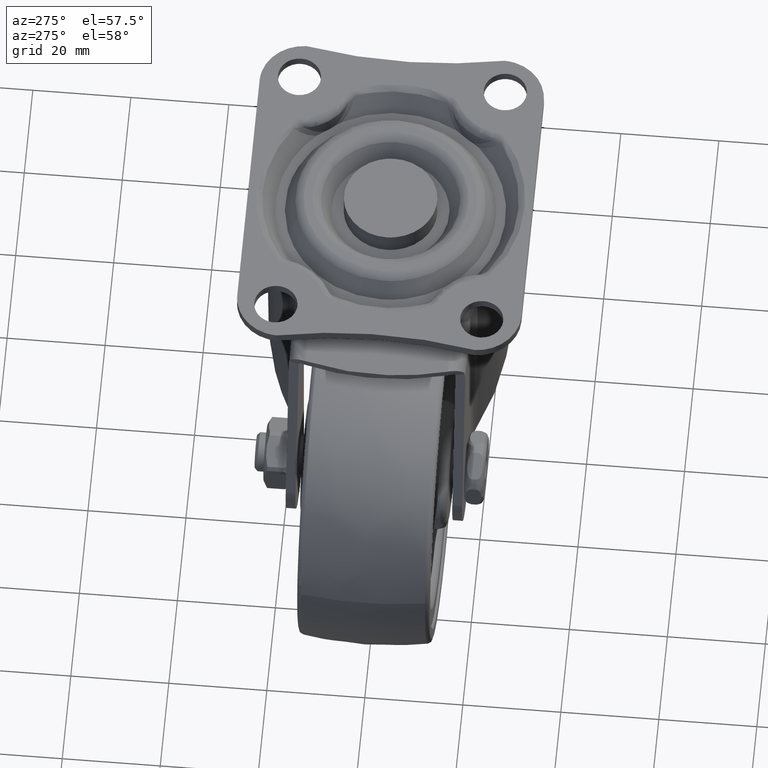
[diagram: clean part render]
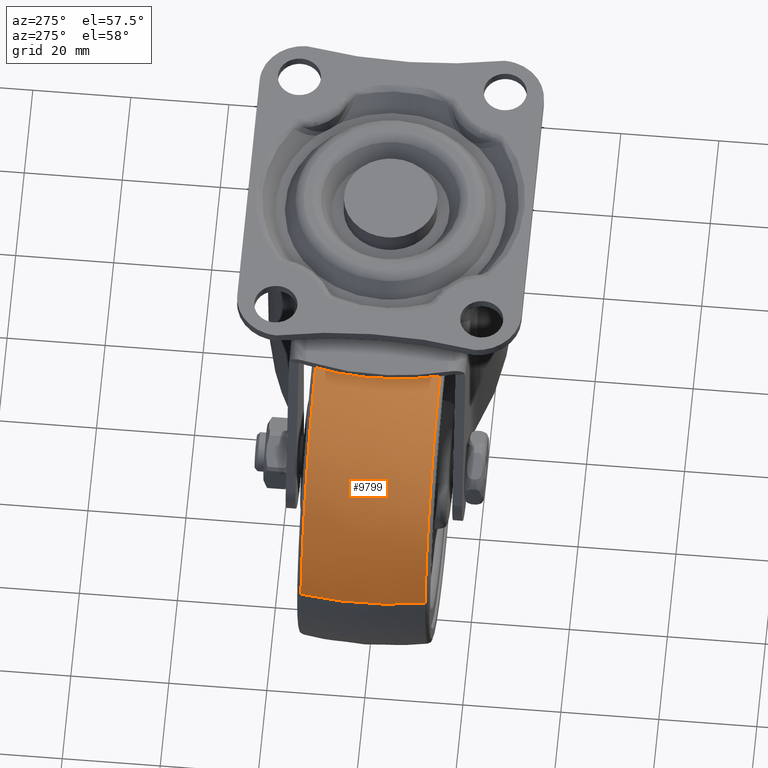
[diagram: same view with one face highlighted and labeled with its STEP entity id]
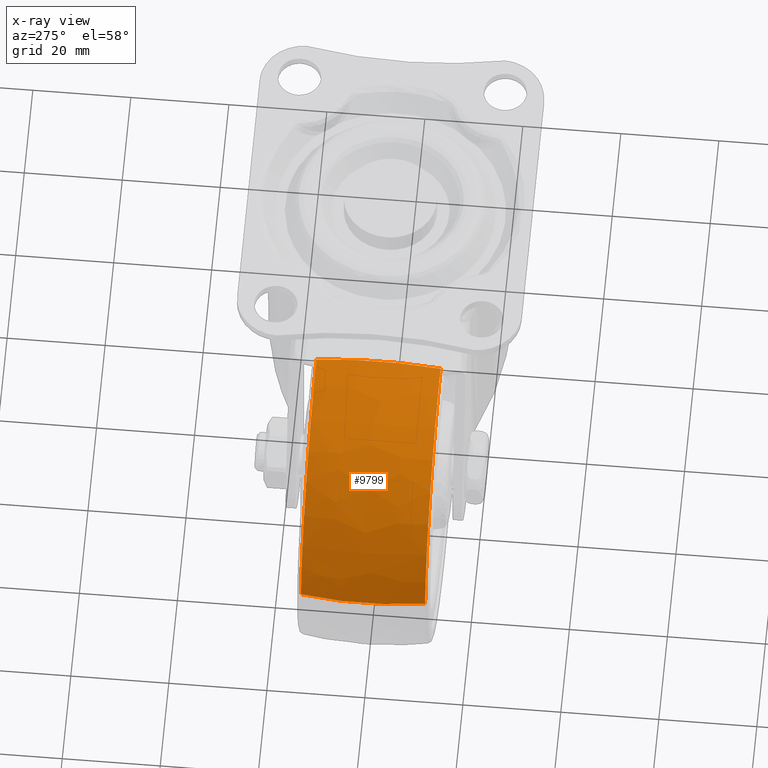
[diagram: x-ray of the same camera — body ghosted, the highlighted face saturated]
A machine part, auxiliary view. The second image highlights one B-rep face of the part: STEP entity #9799.
The next image is the same camera in x-ray: the body ghosted, the highlighted face saturated — about 0% of this face is hidden behind the body in this view.
In plain terms, the highlighted face is a freeform B-spline surface patch.
Its self-contained STEP definition (entity closure, byte-faithful):
#8533=CARTESIAN_POINT('',(-28.0,-12.668916959643511,-19.077759395410940));
#8534=VERTEX_POINT('',#8533);
#8548=CARTESIAN_POINT('',(-64.178642009598192,-12.668925112644191,-51.294556168802032));
#8549=VERTEX_POINT('',#8548);
#8550=CARTESIAN_POINT('',(-28.0,-12.668916959643511,-19.077759395410940));
#8551=CARTESIAN_POINT('',(-60.433722520481417,-12.668921036143848,-19.077759624584910));
#8552=CARTESIAN_POINT('',(-64.178642009598192,-12.668925112644191,-51.294556168802039));
#8560=(BOUNDED_CURVE()B_SPLINE_CURVE(2,(#8550,#8551,#8552),.UNSPECIFIED.,.F.,.U.)B_SPLINE_CURVE_WITH_KNOTS((3,3),(0.500000000000000,0.730000077810686),.UNSPECIFIED.)CURVE()GEOMETRIC_REPRESENTATION_ITEM()RATIONAL_B_SPLINE_CURVE((1.0,0.730538147530734,0.956886271341010))REPRESENTATION_ITEM(''));
#8561=EDGE_CURVE('',#8534,#8549,#8560,.T.);
#8628=CARTESIAN_POINT('',(-28.0,12.668902696078179,-19.077756950900710));
#8629=VERTEX_POINT('',#8628);
#8692=CARTESIAN_POINT('',(-63.777115558530099,12.668908927967831,-48.675187562578493));
#8693=VERTEX_POINT('',#8692);
#8707=CARTESIAN_POINT('',(-28.0,12.668902696078179,-19.077756950900710));
#8708=CARTESIAN_POINT('',(-58.131129300727835,12.668905697010883,-19.077758139331795));
#8709=CARTESIAN_POINT('',(-63.777115558530099,12.668908927967832,-48.675187562578486));
#8717=(BOUNDED_CURVE()B_SPLINE_CURVE(2,(#8707,#8708,#8709),.UNSPECIFIED.,.F.,.U.)B_SPLINE_CURVE_WITH_KNOTS((3,3),(0.500000000000000,0.717838773515279),.UNSPECIFIED.)CURVE()GEOMETRIC_REPRESENTATION_ITEM()RATIONAL_B_SPLINE_CURVE((1.0,0.744786001770941,0.934336038407073))REPRESENTATION_ITEM(''));
#8718=EDGE_CURVE('',#8629,#8693,#8717,.T.);
#8761=CARTESIAN_POINT('',(-64.178644444492932,12.668910670436951,-51.294555679297382));
#8762=VERTEX_POINT('',#8761);
#8778=CARTESIAN_POINT('',(-63.777115558530099,12.668908927967832,-48.675187562578486));
#8779=CARTESIAN_POINT('',(-64.025555746200112,12.668909804263272,-49.977563295008856));
#8780=CARTESIAN_POINT('',(-64.178644444492932,12.668910670436953,-51.294555679297382));
#8788=(BOUNDED_CURVE()B_SPLINE_CURVE(2,(#8778,#8779,#8780),.UNSPECIFIED.,.F.,.U.)B_SPLINE_CURVE_WITH_KNOTS((3,3),(0.717838773515279,0.730000076858197),.UNSPECIFIED.)CURVE()GEOMETRIC_REPRESENTATION_ITEM()RATIONAL_B_SPLINE_CURVE((0.934336038407073,0.944918064081357,0.956886269466280))REPRESENTATION_ITEM(''));
#8789=EDGE_CURVE('',#8693,#8762,#8788,.T.);
#9730=CARTESIAN_POINT('',(-64.178642009598192,-12.668925112644185,-51.294556168802032));
#9731=CARTESIAN_POINT('',(-65.249188383052910,-6.380305253426590,-51.170113991700532));
#9732=CARTESIAN_POINT('',(-65.249188377089979,1.205452E-013,-51.170113940403006));
#9733=CARTESIAN_POINT('',(-65.249188371127076,6.380297874021402,-51.170113889105536));
#9734=CARTESIAN_POINT('',(-64.178644444492932,12.668910670436954,-51.294555679297389));
#9742=(BOUNDED_CURVE()B_SPLINE_CURVE(2,(#9730,#9731,#9732,#9733,#9734),.UNSPECIFIED.,.F.,.U.)B_SPLINE_CURVE_WITH_KNOTS((3,2,3),(0.416825202455626,0.500000000000000,0.583174703489082),.UNSPECIFIED.)CURVE()GEOMETRIC_REPRESENTATION_ITEM()RATIONAL_B_SPLINE_CURVE((0.921329666042322,0.935560361051417,0.956886118190660,0.935560385166898,0.921329698226892))REPRESENTATION_ITEM(''));
#9743=EDGE_CURVE('',#8549,#8762,#9742,.T.);
#9748=CARTESIAN_POINT('',(-27.999999999999989,-12.668916959643525,-19.077759395410911));
#9749=CARTESIAN_POINT('',(-27.999999999999996,-6.380301087560796,-18.000005999999807));
#9750=CARTESIAN_POINT('',(-28.0,1.169933E-013,-18.000005999999800));
#9751=CARTESIAN_POINT('',(-28.0,6.380293799435012,-18.000005999999804));
#9752=CARTESIAN_POINT('',(-27.999999999999996,12.668902696078181,-19.077756950900717));
#9760=(BOUNDED_CURVE()B_SPLINE_CURVE(2,(#9748,#9749,#9750,#9751,#9752),.UNSPECIFIED.,.F.,.U.)B_SPLINE_CURVE_WITH_KNOTS((3,2,3),(0.416825255552286,0.500000000000000,0.583174651555834),.UNSPECIFIED.)CURVE()GEOMETRIC_REPRESENTATION_ITEM()RATIONAL_B_SPLINE_CURVE((0.962841519692495,0.977713394394570,1.0,0.977713419284874,0.962841552911155))REPRESENTATION_ITEM(''));
#9761=EDGE_CURVE('',#8534,#8629,#9760,.T.);
#9769=CARTESIAN_POINT('',(-28.0,-13.944780988006617,-19.307787393171807));
#9770=CARTESIAN_POINT('',(-28.000000000000007,-7.033714231313925,-18.000005999999800));
#9771=CARTESIAN_POINT('',(-28.0,1.169933E-013,-18.000005999999800));
#9772=CARTESIAN_POINT('',(-27.999999999999993,7.033707184550765,-18.000005999999804));
#9773=CARTESIAN_POINT('',(-27.999999999999996,13.944767260962152,-19.307784795604007));
#9774=CARTESIAN_POINT('',(-60.228870303894830,-13.944780988006611,-19.307787393171807));
#9775=CARTESIAN_POINT('',(-61.393438781010403,-7.033714231313926,-18.000005999999814));
#9776=CARTESIAN_POINT('',(-61.393438781010410,1.169933E-013,-18.000005999999811));
#9777=CARTESIAN_POINT('',(-61.393438781010403,7.033707184550766,-18.000005999999818));
#9778=CARTESIAN_POINT('',(-60.228872617007411,13.944767260962157,-19.307784795604018));
#9779=CARTESIAN_POINT('',(-63.950151975616237,-13.944780988006615,-51.321099370925431));
#9780=CARTESIAN_POINT('',(-65.249186454440562,-7.033714231313925,-51.170097400234546));
#9781=CARTESIAN_POINT('',(-65.249186454440562,1.169933E-013,-51.170097400234539));
#9782=CARTESIAN_POINT('',(-65.249186454440562,7.033707184550764,-51.170097400234532));
#9783=CARTESIAN_POINT('',(-63.950154555810570,13.944767260962157,-51.321099070999253));
#9791=(BOUNDED_SURFACE()B_SPLINE_SURFACE(2,2,((#9769,#9774,#9779),(#9770,#9775,#9780),(#9771,#9776,#9781),(#9772,#9777,#9782),(#9773,#9778,#9783)),.UNSPECIFIED.,.F.,.F.,.U.)B_SPLINE_SURFACE_WITH_KNOTS((3,2,3),(3,3),(0.0,14.295199956183620,28.590385941715130),(0.0,57.098773362883357),.UNSPECIFIED.)GEOMETRIC_REPRESENTATION_ITEM()RATIONAL_B_SPLINE_SURFACE(((0.959944100872440,0.701275872693767,0.918557184363853),(0.975486948818417,0.712630517456473,0.933429919800506),(1.0,0.730538238691624,0.956886118190660),(0.975486972774942,0.712630534957630,0.933429942724172),(0.959944131252398,0.701275894887487,0.918557213434012)))REPRESENTATION_ITEM('')SURFACE());
#9792=ORIENTED_EDGE('',*,*,#8561,.F.);
#9793=ORIENTED_EDGE('',*,*,#9761,.T.);
#9794=ORIENTED_EDGE('',*,*,#8718,.T.);
#9795=ORIENTED_EDGE('',*,*,#8789,.T.);
#9796=ORIENTED_EDGE('',*,*,#9743,.F.);
#9797=EDGE_LOOP('',(#9792,#9793,#9794,#9795,#9796));
#9798=FACE_OUTER_BOUND('',#9797,.T.);
#9799=ADVANCED_FACE('',(#9798),#9791,.T.);